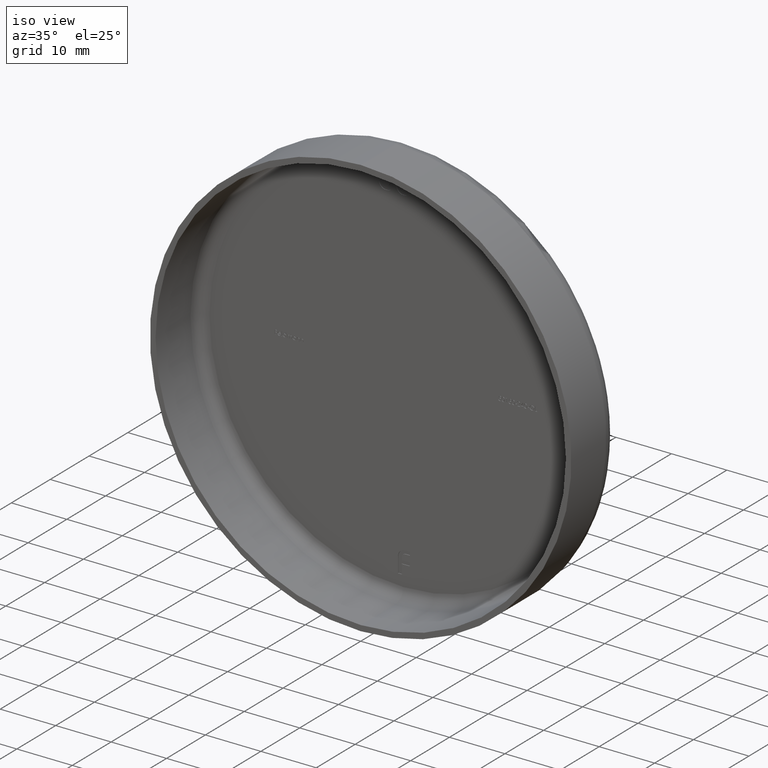
[diagram: clean part render]
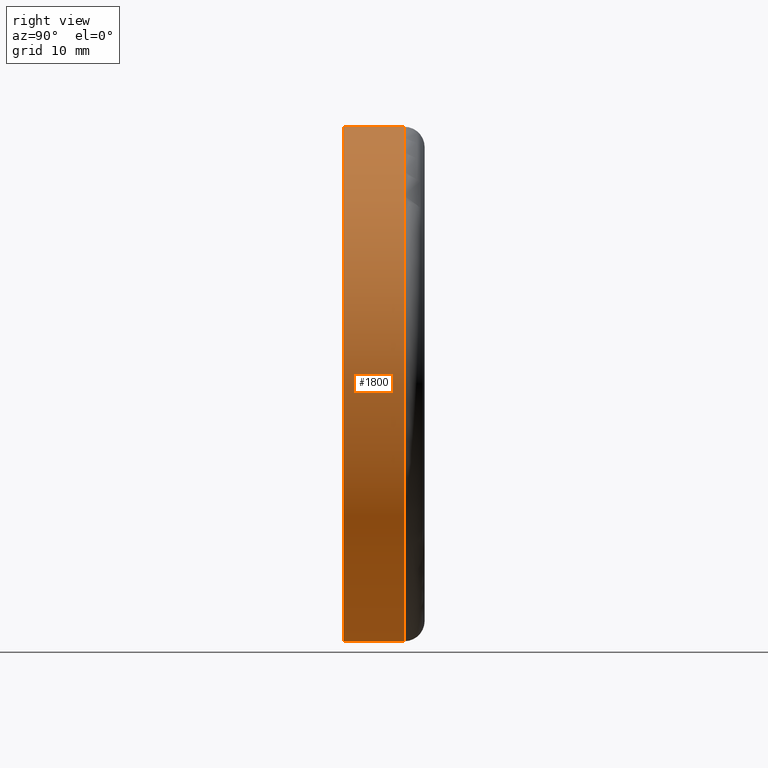
[diagram: tour spotlight — one face highlighted and labeled with its STEP entity id]
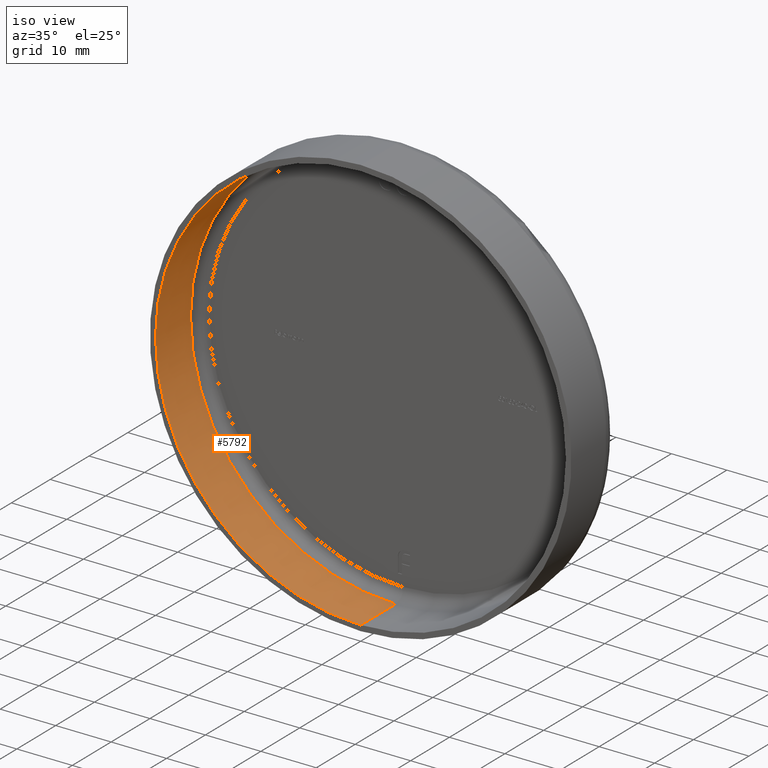
[diagram: tour spotlight — one face highlighted and labeled with its STEP entity id]
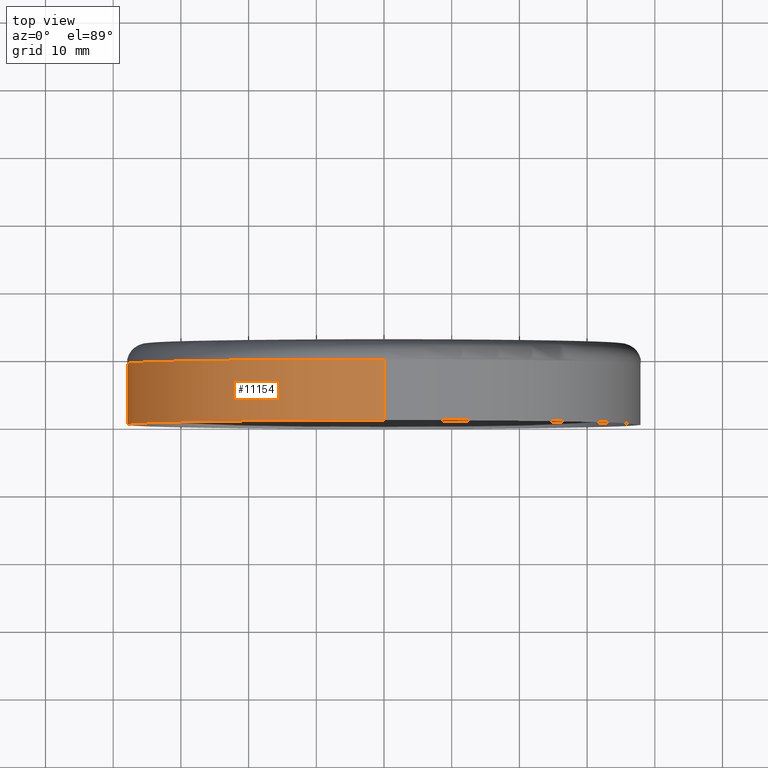
[diagram: tour spotlight — one face highlighted and labeled with its STEP entity id]
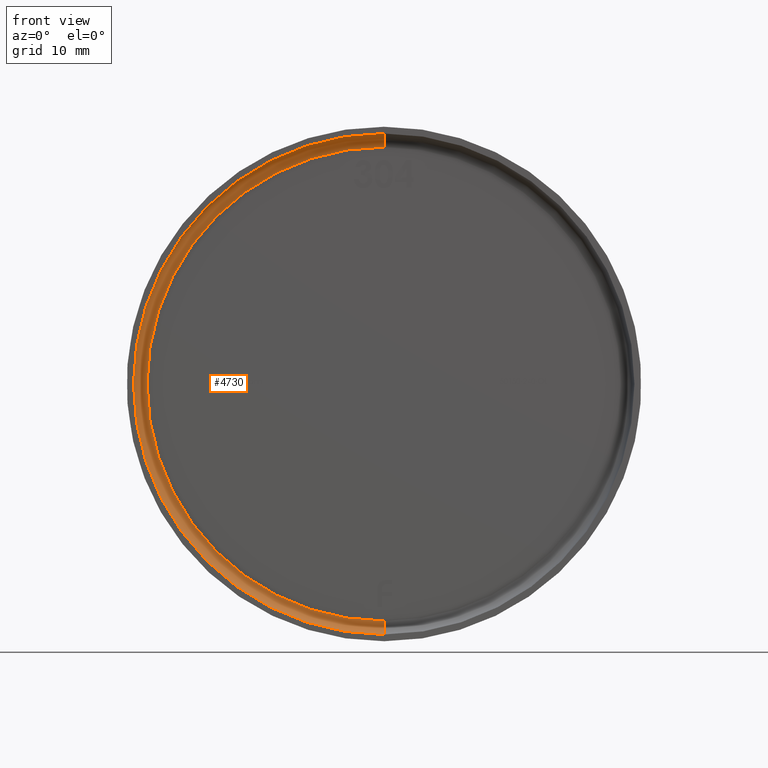
[diagram: tour spotlight — one face highlighted and labeled with its STEP entity id]
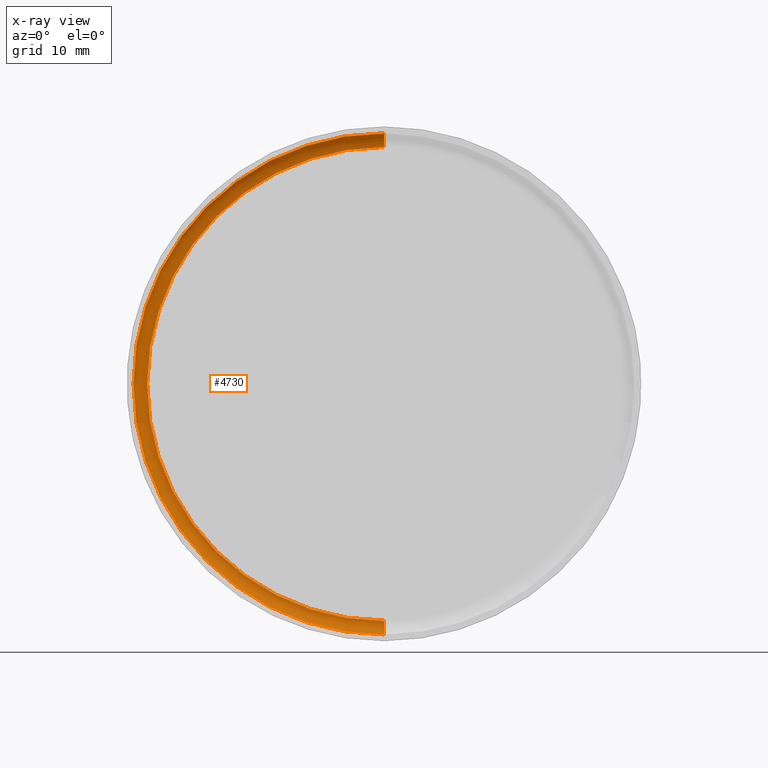
[diagram: x-ray of the same camera — body ghosted, this tour face saturated]
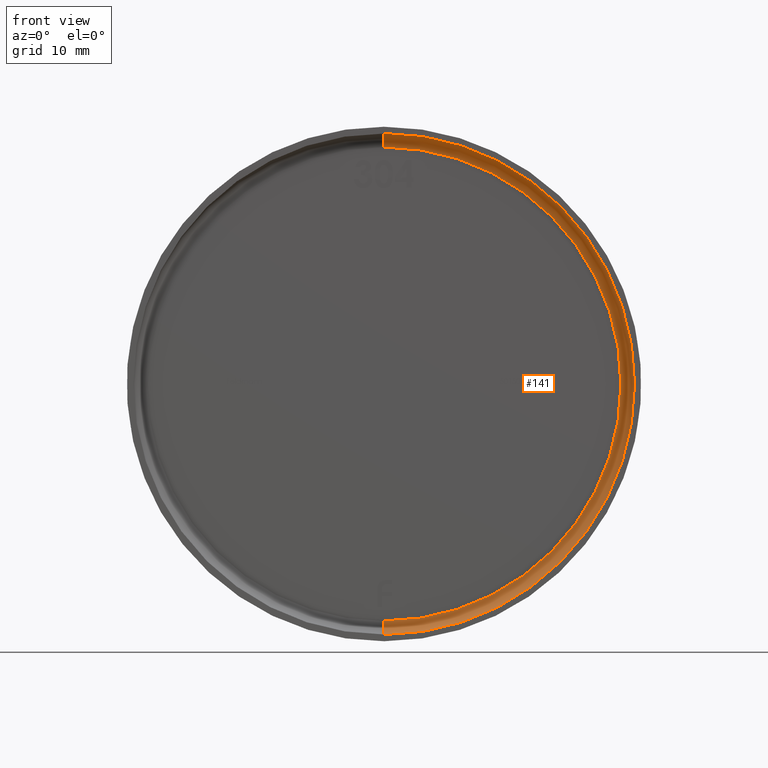
[diagram: tour spotlight — one face highlighted and labeled with its STEP entity id]
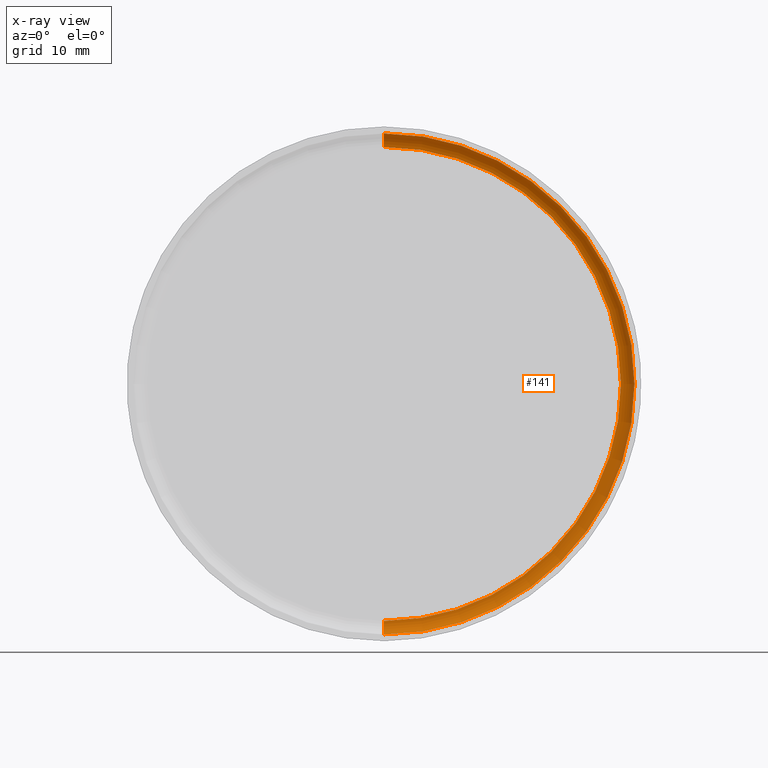
[diagram: x-ray of the same camera — body ghosted, this tour face saturated]
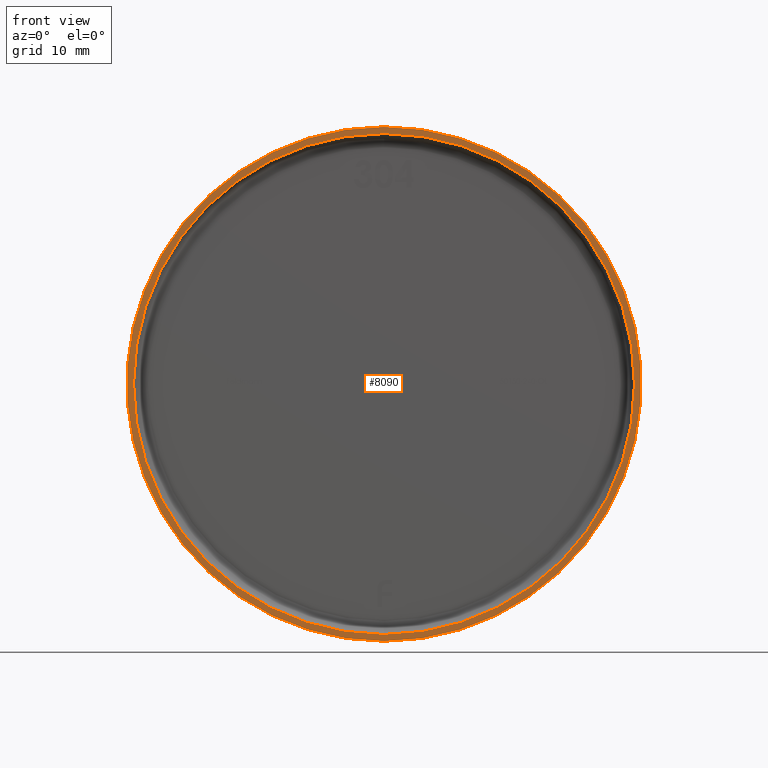
[diagram: tour spotlight — one face highlighted and labeled with its STEP entity id]
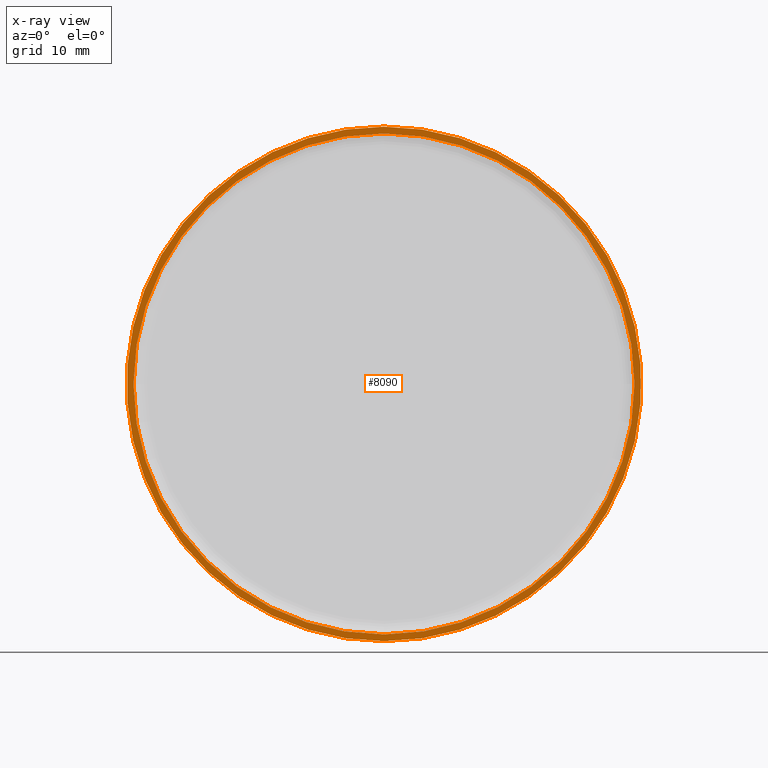
[diagram: x-ray of the same camera — body ghosted, this tour face saturated]
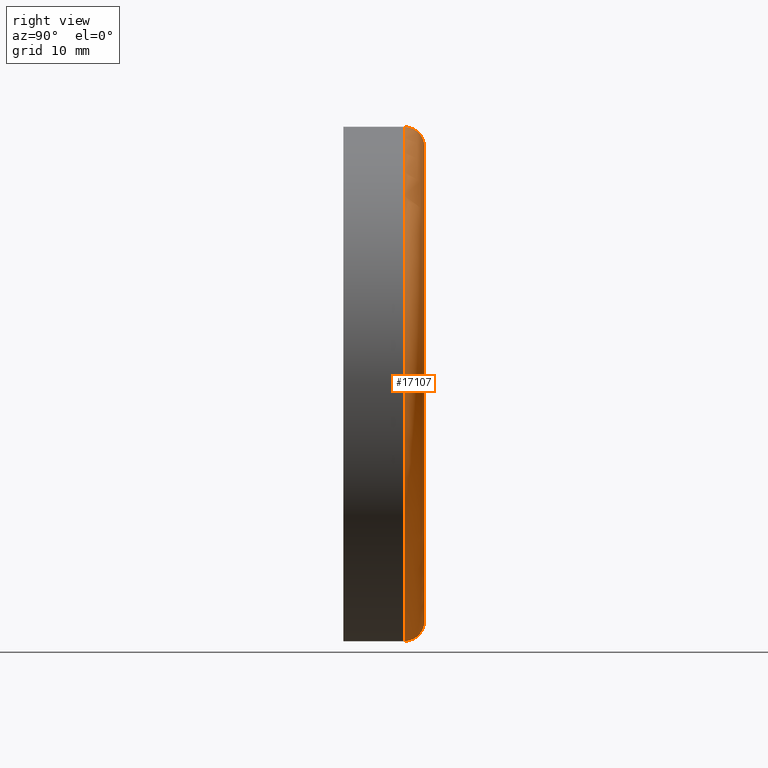
[diagram: tour spotlight — one face highlighted and labeled with its STEP entity id]
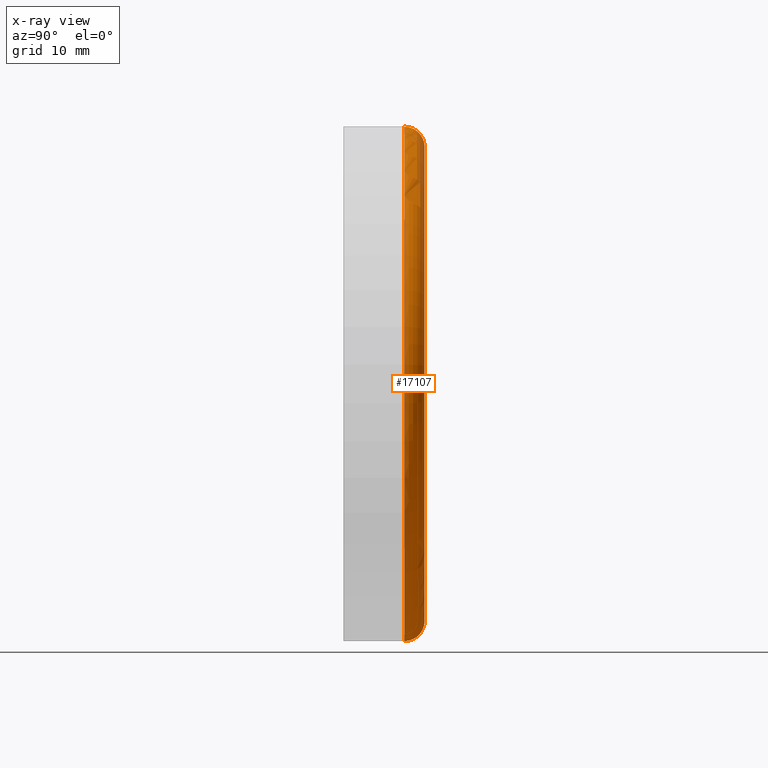
[diagram: x-ray of the same camera — body ghosted, this tour face saturated]
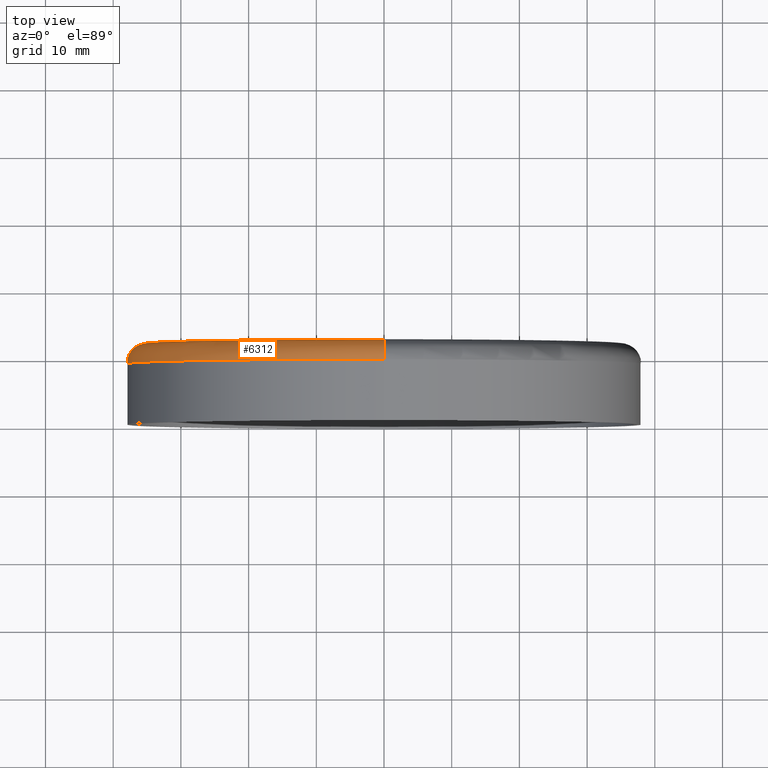
[diagram: tour spotlight — one face highlighted and labeled with its STEP entity id]
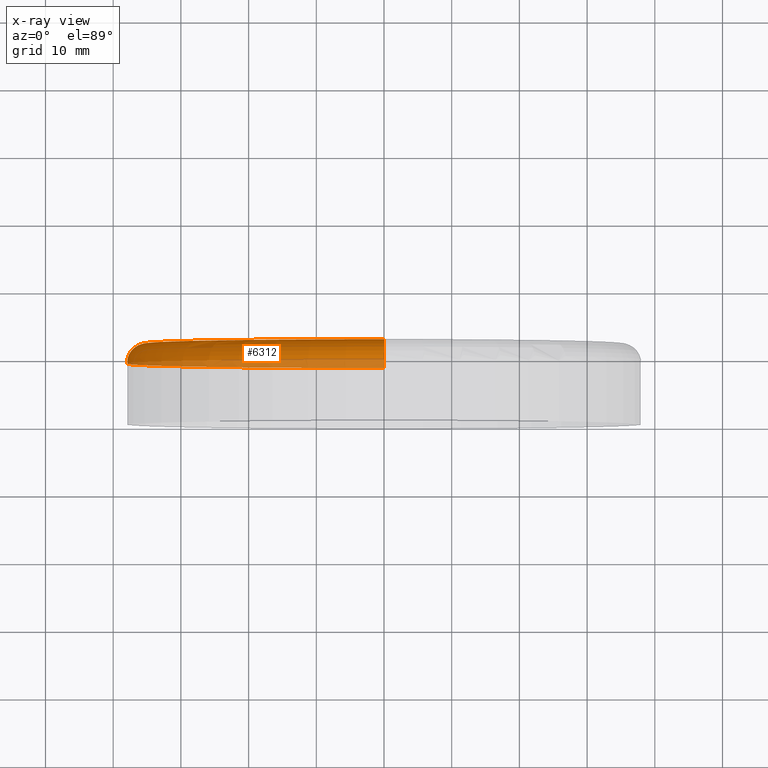
[diagram: x-ray of the same camera — body ghosted, this tour face saturated]
A machine part: a face-by-face anatomy tour. The part has 307 B-rep faces; the first image is the clean iso view, then the 8 largest visible faces are spotlighted one at a time (largest first), each with its STEP entity span.

Face 1 — right view, entity #1800. In plain terms, the highlighted cylindrical surface (partial cylindrical patch) has radius 38 mm, axis along (-0, -1, -0).
Definition (entity closure, byte-faithful):
#56 = CARTESIAN_POINT ( 'NONE',  ( 0.000000000000000000, 0.000000000000000000, -38.00000000000000711 ) ) ;
#803 = CARTESIAN_POINT ( 'NONE',  ( 4.653657836759942730E-15, 0.000000000000000000, 38.00000000000000711 ) ) ;
#1516 = CARTESIAN_POINT ( 'NONE',  ( 0.000000000000000000, 9.000000000000001776, -38.00000000000000711 ) ) ;
#1752 = EDGE_CURVE ( 'NONE', #17239, #14990, #6360, .T. ) ;
#1791 = EDGE_CURVE ( 'NONE', #11901, #3039, #15114, .T. ) ;
#1800 = ADVANCED_FACE ( 'NONE', ( #8040 ), #9499, .T. ) ;
#1884 = CARTESIAN_POINT ( 'NONE',  ( 4.653657836759942730E-15, 9.000000000000001776, 38.00000000000000711 ) ) ;
#2219 = CARTESIAN_POINT ( 'NONE',  ( 0.000000000000000000, 9.000000000000001776, 0.000000000000000000 ) ) ;
#3039 = VERTEX_POINT ( 'NONE', #1884 ) ;
#3606 = DIRECTION ( 'NONE',  ( -0.000000000000000000, -1.000000000000000000, -0.000000000000000000 ) ) ;
#4601 = EDGE_LOOP ( 'NONE', ( #10176, #10042, #6595, #11461 ) ) ;
#4754 = VECTOR ( 'NONE', #12763, 1000.000000000000000 ) ;
#4840 = EDGE_CURVE ( 'NONE', #11901, #17239, #12591, .T. ) ;
#4859 = DIRECTION ( 'NONE',  ( -0.000000000000000000, -1.000000000000000000, -0.000000000000000000 ) ) ;
#6160 = AXIS2_PLACEMENT_3D ( 'NONE', #2219, #3606, #10388 ) ;
#6360 = CIRCLE ( 'NONE', #8860, 38.00000000000000711 ) ;
#6595 = ORIENTED_EDGE ( 'NONE', *, *, #1752, .F. ) ;
#7392 = CARTESIAN_POINT ( 'NONE',  ( 4.653657836759942730E-15, 0.000000000000000000, 38.00000000000000711 ) ) ;
#7586 = CARTESIAN_POINT ( 'NONE',  ( 0.000000000000000000, 0.000000000000000000, 0.000000000000000000 ) ) ;
#7633 = DIRECTION ( 'NONE',  ( 0.000000000000000000, 0.000000000000000000, -1.000000000000000000 ) ) ;
#7698 = DIRECTION ( 'NONE',  ( -0.000000000000000000, -1.000000000000000000, -0.000000000000000000 ) ) ;
#8040 = FACE_OUTER_BOUND ( 'NONE', #4601, .T. ) ;
#8860 = AXIS2_PLACEMENT_3D ( 'NONE', #12887, #7698, #7633 ) ;
#8929 = DIRECTION ( 'NONE',  ( 0.000000000000000000, 0.000000000000000000, -1.000000000000000000 ) ) ;
#9499 = CYLINDRICAL_SURFACE ( 'NONE', #16230, 38.00000000000000711 ) ;
#9871 = EDGE_CURVE ( 'NONE', #3039, #14990, #16252, .T. ) ;
#10042 = ORIENTED_EDGE ( 'NONE', *, *, #9871, .T. ) ;
#10176 = ORIENTED_EDGE ( 'NONE', *, *, #1791, .T. ) ;
#10299 = VECTOR ( 'NONE', #4859, 1000.000000000000000 ) ;
#10388 = DIRECTION ( 'NONE',  ( 0.000000000000000000, 0.000000000000000000, -1.000000000000000000 ) ) ;
#11461 = ORIENTED_EDGE ( 'NONE', *, *, #4840, .F. ) ;
#11901 = VERTEX_POINT ( 'NONE', #1516 ) ;
#12591 = LINE ( 'NONE', #15315, #10299 ) ;
#12763 = DIRECTION ( 'NONE',  ( -0.000000000000000000, -1.000000000000000000, -0.000000000000000000 ) ) ;
#12887 = CARTESIAN_POINT ( 'NONE',  ( 0.000000000000000000, 0.000000000000000000, 0.000000000000000000 ) ) ;
#14990 = VERTEX_POINT ( 'NONE', #803 ) ;
#15114 = CIRCLE ( 'NONE', #6160, 38.00000000000000711 ) ;
#15315 = CARTESIAN_POINT ( 'NONE',  ( 0.000000000000000000, 0.000000000000000000, -38.00000000000000711 ) ) ;
#16230 = AXIS2_PLACEMENT_3D ( 'NONE', #7586, #16901, #8929 ) ;
#16252 = LINE ( 'NONE', #7392, #4754 ) ;
#16901 = DIRECTION ( 'NONE',  ( -0.000000000000000000, -1.000000000000000000, -0.000000000000000000 ) ) ;
#17239 = VERTEX_POINT ( 'NONE', #56 ) ;

Face 2 — iso view, entity #5792. In plain terms, the highlighted cylindrical surface (partial cylindrical patch) has radius 37 mm, axis along (-0, -1, -0).
Definition (entity closure, byte-faithful):
#492 = EDGE_CURVE ( 'NONE', #7180, #16074, #8186, .T. ) ;
#951 = ORIENTED_EDGE ( 'NONE', *, *, #492, .T. ) ;
#1477 = AXIS2_PLACEMENT_3D ( 'NONE', #15703, #9134, #4845 ) ;
#1479 = VERTEX_POINT ( 'NONE', #7387 ) ;
#1711 = DIRECTION ( 'NONE',  ( -0.000000000000000000, -1.000000000000000000, -0.000000000000000000 ) ) ;
#2914 = CARTESIAN_POINT ( 'NONE',  ( 0.000000000000000000, 0.000000000000000000, 0.000000000000000000 ) ) ;
#2991 = EDGE_CURVE ( 'NONE', #3741, #1479, #9483, .T. ) ;
#3393 = EDGE_CURVE ( 'NONE', #3741, #7180, #11572, .T. ) ;
#3741 = VERTEX_POINT ( 'NONE', #4878 ) ;
#4629 = VECTOR ( 'NONE', #4961, 1000.000000000000000 ) ;
#4845 = DIRECTION ( 'NONE',  ( 0.000000000000000000, 0.000000000000000000, -1.000000000000000000 ) ) ;
#4878 = CARTESIAN_POINT ( 'NONE',  ( 4.531193156845207581E-15, 9.000000000000001776, 37.00000000000000711 ) ) ;
#4961 = DIRECTION ( 'NONE',  ( -0.000000000000000000, -1.000000000000000000, -0.000000000000000000 ) ) ;
#5792 = ADVANCED_FACE ( 'NONE', ( #11541 ), #5877, .F. ) ;
#5877 = CYLINDRICAL_SURFACE ( 'NONE', #14779, 37.00000000000000711 ) ;
#6016 = ORIENTED_EDGE ( 'NONE', *, *, #2991, .F. ) ;
#6066 = EDGE_LOOP ( 'NONE', ( #6016, #12122, #951, #11730 ) ) ;
#6197 = CARTESIAN_POINT ( 'NONE',  ( 0.000000000000000000, 0.000000000000000000, -37.00000000000000711 ) ) ;
#7180 = VERTEX_POINT ( 'NONE', #12826 ) ;
#7387 = CARTESIAN_POINT ( 'NONE',  ( 0.000000000000000000, 9.000000000000001776, -37.00000000000000711 ) ) ;
#7968 = AXIS2_PLACEMENT_3D ( 'NONE', #14968, #1711, #12432 ) ;
#8186 = CIRCLE ( 'NONE', #1477, 37.00000000000000711 ) ;
#9134 = DIRECTION ( 'NONE',  ( -0.000000000000000000, -1.000000000000000000, -0.000000000000000000 ) ) ;
#9483 = CIRCLE ( 'NONE', #7968, 37.00000000000000711 ) ;
#9569 = DIRECTION ( 'NONE',  ( 0.000000000000000000, 0.000000000000000000, -1.000000000000000000 ) ) ;
#11541 = FACE_OUTER_BOUND ( 'NONE', #6066, .T. ) ;
#11572 = LINE ( 'NONE', #16140, #16351 ) ;
#11730 = ORIENTED_EDGE ( 'NONE', *, *, #15002, .F. ) ;
#12122 = ORIENTED_EDGE ( 'NONE', *, *, #3393, .T. ) ;
#12432 = DIRECTION ( 'NONE',  ( 0.000000000000000000, 0.000000000000000000, -1.000000000000000000 ) ) ;
#12826 = CARTESIAN_POINT ( 'NONE',  ( 4.531193156845207581E-15, -1.224646799147353207E-16, 37.00000000000000711 ) ) ;
#13351 = DIRECTION ( 'NONE',  ( -0.000000000000000000, -1.000000000000000000, -0.000000000000000000 ) ) ;
#13423 = LINE ( 'NONE', #6197, #4629 ) ;
#14779 = AXIS2_PLACEMENT_3D ( 'NONE', #2914, #16321, #9569 ) ;
#14968 = CARTESIAN_POINT ( 'NONE',  ( 0.000000000000000000, 9.000000000000001776, 0.000000000000000000 ) ) ;
#15002 = EDGE_CURVE ( 'NONE', #1479, #16074, #13423, .T. ) ;
#15703 = CARTESIAN_POINT ( 'NONE',  ( 0.000000000000000000, -1.224646799147353207E-16, 0.000000000000000000 ) ) ;
#16074 = VERTEX_POINT ( 'NONE', #16897 ) ;
#16140 = CARTESIAN_POINT ( 'NONE',  ( 4.531193156845207581E-15, 0.000000000000000000, 37.00000000000000711 ) ) ;
#16321 = DIRECTION ( 'NONE',  ( -0.000000000000000000, -1.000000000000000000, -0.000000000000000000 ) ) ;
#16351 = VECTOR ( 'NONE', #13351, 1000.000000000000000 ) ;
#16897 = CARTESIAN_POINT ( 'NONE',  ( 0.000000000000000000, -1.224646799147353207E-16, -37.00000000000000711 ) ) ;

Face 3 — top view, entity #11154. In plain terms, the highlighted cylindrical surface (partial cylindrical patch) has radius 38 mm, axis along (-0, -1, -0).
Definition (entity closure, byte-faithful):
#56 = CARTESIAN_POINT ( 'NONE',  ( 0.000000000000000000, 0.000000000000000000, -38.00000000000000711 ) ) ;
#108 = DIRECTION ( 'NONE',  ( -0.000000000000000000, -1.000000000000000000, -0.000000000000000000 ) ) ;
#803 = CARTESIAN_POINT ( 'NONE',  ( 4.653657836759942730E-15, 0.000000000000000000, 38.00000000000000711 ) ) ;
#859 = ORIENTED_EDGE ( 'NONE', *, *, #4840, .T. ) ;
#1191 = AXIS2_PLACEMENT_3D ( 'NONE', #7684, #17126, #17001 ) ;
#1371 = EDGE_LOOP ( 'NONE', ( #15139, #5094, #859, #4338 ) ) ;
#1516 = CARTESIAN_POINT ( 'NONE',  ( 0.000000000000000000, 9.000000000000001776, -38.00000000000000711 ) ) ;
#1827 = EDGE_CURVE ( 'NONE', #14990, #17239, #7827, .T. ) ;
#1884 = CARTESIAN_POINT ( 'NONE',  ( 4.653657836759942730E-15, 9.000000000000001776, 38.00000000000000711 ) ) ;
#2465 = CYLINDRICAL_SURFACE ( 'NONE', #1191, 38.00000000000000711 ) ;
#3039 = VERTEX_POINT ( 'NONE', #1884 ) ;
#4338 = ORIENTED_EDGE ( 'NONE', *, *, #1827, .F. ) ;
#4754 = VECTOR ( 'NONE', #12763, 1000.000000000000000 ) ;
#4840 = EDGE_CURVE ( 'NONE', #11901, #17239, #12591, .T. ) ;
#4859 = DIRECTION ( 'NONE',  ( -0.000000000000000000, -1.000000000000000000, -0.000000000000000000 ) ) ;
#4997 = CARTESIAN_POINT ( 'NONE',  ( 0.000000000000000000, 0.000000000000000000, 0.000000000000000000 ) ) ;
#5094 = ORIENTED_EDGE ( 'NONE', *, *, #17205, .T. ) ;
#6837 = FACE_OUTER_BOUND ( 'NONE', #1371, .T. ) ;
#7392 = CARTESIAN_POINT ( 'NONE',  ( 4.653657836759942730E-15, 0.000000000000000000, 38.00000000000000711 ) ) ;
#7684 = CARTESIAN_POINT ( 'NONE',  ( 0.000000000000000000, 0.000000000000000000, 0.000000000000000000 ) ) ;
#7827 = CIRCLE ( 'NONE', #14432, 38.00000000000000711 ) ;
#9387 = DIRECTION ( 'NONE',  ( -0.000000000000000000, -1.000000000000000000, -0.000000000000000000 ) ) ;
#9871 = EDGE_CURVE ( 'NONE', #3039, #14990, #16252, .T. ) ;
#10299 = VECTOR ( 'NONE', #4859, 1000.000000000000000 ) ;
#10829 = CARTESIAN_POINT ( 'NONE',  ( 0.000000000000000000, 9.000000000000001776, 0.000000000000000000 ) ) ;
#11154 = ADVANCED_FACE ( 'NONE', ( #6837 ), #2465, .T. ) ;
#11901 = VERTEX_POINT ( 'NONE', #1516 ) ;
#11956 = DIRECTION ( 'NONE',  ( 0.000000000000000000, 0.000000000000000000, -1.000000000000000000 ) ) ;
#12114 = DIRECTION ( 'NONE',  ( 0.000000000000000000, 0.000000000000000000, -1.000000000000000000 ) ) ;
#12591 = LINE ( 'NONE', #15315, #10299 ) ;
#12763 = DIRECTION ( 'NONE',  ( -0.000000000000000000, -1.000000000000000000, -0.000000000000000000 ) ) ;
#12886 = AXIS2_PLACEMENT_3D ( 'NONE', #10829, #108, #12114 ) ;
#14432 = AXIS2_PLACEMENT_3D ( 'NONE', #4997, #9387, #11956 ) ;
#14990 = VERTEX_POINT ( 'NONE', #803 ) ;
#15139 = ORIENTED_EDGE ( 'NONE', *, *, #9871, .F. ) ;
#15315 = CARTESIAN_POINT ( 'NONE',  ( 0.000000000000000000, 0.000000000000000000, -38.00000000000000711 ) ) ;
#16252 = LINE ( 'NONE', #7392, #4754 ) ;
#16416 = CIRCLE ( 'NONE', #12886, 38.00000000000000711 ) ;
#17001 = DIRECTION ( 'NONE',  ( 0.000000000000000000, 0.000000000000000000, -1.000000000000000000 ) ) ;
#17126 = DIRECTION ( 'NONE',  ( -0.000000000000000000, -1.000000000000000000, -0.000000000000000000 ) ) ;
#17205 = EDGE_CURVE ( 'NONE', #3039, #11901, #16416, .T. ) ;
#17239 = VERTEX_POINT ( 'NONE', #56 ) ;

Face 4 — front view, entity #4730. An x-ray twin of the same camera follows (body ghosted, this face saturated) — the face is partly hidden behind the body. In plain terms, the highlighted toroidal blend (fillet) surface has major radius 35 mm and minor (blend) radius 2 mm.
Definition (entity closure, byte-faithful):
#196 = CARTESIAN_POINT ( 'NONE',  ( 0.000000000000000000, 9.000000000000001776, 0.000000000000000000 ) ) ;
#727 = CARTESIAN_POINT ( 'NONE',  ( 0.000000000000000000, 9.000000000000001776, -35.00000000000000000 ) ) ;
#1390 = EDGE_CURVE ( 'NONE', #7884, #3741, #6573, .T. ) ;
#1479 = VERTEX_POINT ( 'NONE', #7387 ) ;
#1711 = DIRECTION ( 'NONE',  ( -0.000000000000000000, -1.000000000000000000, -0.000000000000000000 ) ) ;
#1846 = AXIS2_PLACEMENT_3D ( 'NONE', #196, #13854, #4587 ) ;
#1853 = CIRCLE ( 'NONE', #10138, 35.00000000000000000 ) ;
#2025 = CARTESIAN_POINT ( 'NONE',  ( 4.286263797015736496E-15, 9.000000000000001776, 35.00000000000000000 ) ) ;
#2200 = DIRECTION ( 'NONE',  ( -1.224646799147353454E-16, 0.000000000000000000, -1.000000000000000000 ) ) ;
#2491 = DIRECTION ( 'NONE',  ( -0.000000000000000000, -1.000000000000000000, -0.000000000000000000 ) ) ;
#2991 = EDGE_CURVE ( 'NONE', #3741, #1479, #9483, .T. ) ;
#3603 = FACE_OUTER_BOUND ( 'NONE', #8465, .T. ) ;
#3741 = VERTEX_POINT ( 'NONE', #4878 ) ;
#4587 = DIRECTION ( 'NONE',  ( 0.000000000000000000, 0.000000000000000000, -1.000000000000000000 ) ) ;
#4730 = ADVANCED_FACE ( 'NONE', ( #3603 ), #13831, .F. ) ;
#4765 = DIRECTION ( 'NONE',  ( -1.000000000000000000, 0.000000000000000000, 0.000000000000000000 ) ) ;
#4878 = CARTESIAN_POINT ( 'NONE',  ( 4.531193156845207581E-15, 9.000000000000001776, 37.00000000000000711 ) ) ;
#5307 = CARTESIAN_POINT ( 'NONE',  ( 0.000000000000000000, 11.00000000000000178, 0.000000000000000000 ) ) ;
#6146 = DIRECTION ( 'NONE',  ( 1.000000000000000000, 0.000000000000000000, -1.224646799147353207E-16 ) ) ;
#6573 = CIRCLE ( 'NONE', #6735, 2.000000000000001776 ) ;
#6735 = AXIS2_PLACEMENT_3D ( 'NONE', #2025, #6146, #2200 ) ;
#6879 = ORIENTED_EDGE ( 'NONE', *, *, #12253, .F. ) ;
#7387 = CARTESIAN_POINT ( 'NONE',  ( 0.000000000000000000, 9.000000000000001776, -37.00000000000000711 ) ) ;
#7884 = VERTEX_POINT ( 'NONE', #11456 ) ;
#7968 = AXIS2_PLACEMENT_3D ( 'NONE', #14968, #1711, #12432 ) ;
#8465 = EDGE_LOOP ( 'NONE', ( #6879, #16279, #12275, #10005 ) ) ;
#9046 = AXIS2_PLACEMENT_3D ( 'NONE', #727, #4765, #12665 ) ;
#9483 = CIRCLE ( 'NONE', #7968, 37.00000000000000711 ) ;
#10005 = ORIENTED_EDGE ( 'NONE', *, *, #15343, .F. ) ;
#10138 = AXIS2_PLACEMENT_3D ( 'NONE', #5307, #2491, #10534 ) ;
#10534 = DIRECTION ( 'NONE',  ( 0.000000000000000000, 0.000000000000000000, -1.000000000000000000 ) ) ;
#11456 = CARTESIAN_POINT ( 'NONE',  ( 4.408728476930472433E-15, 11.00000000000000178, 35.00000000000000000 ) ) ;
#11890 = VERTEX_POINT ( 'NONE', #12246 ) ;
#12246 = CARTESIAN_POINT ( 'NONE',  ( 0.000000000000000000, 11.00000000000000178, -35.00000000000000000 ) ) ;
#12253 = EDGE_CURVE ( 'NONE', #7884, #11890, #1853, .T. ) ;
#12275 = ORIENTED_EDGE ( 'NONE', *, *, #2991, .T. ) ;
#12432 = DIRECTION ( 'NONE',  ( 0.000000000000000000, 0.000000000000000000, -1.000000000000000000 ) ) ;
#12665 = DIRECTION ( 'NONE',  ( 0.000000000000000000, 0.000000000000000000, 1.000000000000000000 ) ) ;
#13831 = TOROIDAL_SURFACE ( 'NONE', #1846, 35.00000000000000000, 2.000000000000000000 ) ;
#13854 = DIRECTION ( 'NONE',  ( -0.000000000000000000, -1.000000000000000000, -0.000000000000000000 ) ) ;
#14968 = CARTESIAN_POINT ( 'NONE',  ( 0.000000000000000000, 9.000000000000001776, 0.000000000000000000 ) ) ;
#15343 = EDGE_CURVE ( 'NONE', #11890, #1479, #17072, .T. ) ;
#16279 = ORIENTED_EDGE ( 'NONE', *, *, #1390, .T. ) ;
#17072 = CIRCLE ( 'NONE', #9046, 2.000000000000001776 ) ;

Face 5 — front view, entity #141. An x-ray twin of the same camera follows (body ghosted, this face saturated) — the face is partly hidden behind the body. In plain terms, the highlighted toroidal blend (fillet) surface has major radius 35 mm and minor (blend) radius 2 mm.
Definition (entity closure, byte-faithful):
#141 = ADVANCED_FACE ( 'NONE', ( #11525 ), #16313, .F. ) ;
#727 = CARTESIAN_POINT ( 'NONE',  ( 0.000000000000000000, 9.000000000000001776, -35.00000000000000000 ) ) ;
#844 = DIRECTION ( 'NONE',  ( 0.000000000000000000, 0.000000000000000000, -1.000000000000000000 ) ) ;
#1390 = EDGE_CURVE ( 'NONE', #7884, #3741, #6573, .T. ) ;
#1479 = VERTEX_POINT ( 'NONE', #7387 ) ;
#2025 = CARTESIAN_POINT ( 'NONE',  ( 4.286263797015736496E-15, 9.000000000000001776, 35.00000000000000000 ) ) ;
#2200 = DIRECTION ( 'NONE',  ( -1.224646799147353454E-16, 0.000000000000000000, -1.000000000000000000 ) ) ;
#2630 = EDGE_LOOP ( 'NONE', ( #12549, #7027, #10561, #2662 ) ) ;
#2662 = ORIENTED_EDGE ( 'NONE', *, *, #9579, .T. ) ;
#3556 = DIRECTION ( 'NONE',  ( 0.000000000000000000, 0.000000000000000000, -1.000000000000000000 ) ) ;
#3741 = VERTEX_POINT ( 'NONE', #4878 ) ;
#4686 = AXIS2_PLACEMENT_3D ( 'NONE', #6745, #10772, #10716 ) ;
#4765 = DIRECTION ( 'NONE',  ( -1.000000000000000000, 0.000000000000000000, 0.000000000000000000 ) ) ;
#4878 = CARTESIAN_POINT ( 'NONE',  ( 4.531193156845207581E-15, 9.000000000000001776, 37.00000000000000711 ) ) ;
#5795 = CIRCLE ( 'NONE', #6000, 35.00000000000000000 ) ;
#6000 = AXIS2_PLACEMENT_3D ( 'NONE', #9939, #10110, #844 ) ;
#6146 = DIRECTION ( 'NONE',  ( 1.000000000000000000, 0.000000000000000000, -1.224646799147353207E-16 ) ) ;
#6573 = CIRCLE ( 'NONE', #6735, 2.000000000000001776 ) ;
#6735 = AXIS2_PLACEMENT_3D ( 'NONE', #2025, #6146, #2200 ) ;
#6745 = CARTESIAN_POINT ( 'NONE',  ( 0.000000000000000000, 9.000000000000001776, 0.000000000000000000 ) ) ;
#7027 = ORIENTED_EDGE ( 'NONE', *, *, #15401, .F. ) ;
#7387 = CARTESIAN_POINT ( 'NONE',  ( 0.000000000000000000, 9.000000000000001776, -37.00000000000000711 ) ) ;
#7701 = DIRECTION ( 'NONE',  ( -0.000000000000000000, -1.000000000000000000, -0.000000000000000000 ) ) ;
#7884 = VERTEX_POINT ( 'NONE', #11456 ) ;
#8115 = AXIS2_PLACEMENT_3D ( 'NONE', #15676, #7701, #3556 ) ;
#9046 = AXIS2_PLACEMENT_3D ( 'NONE', #727, #4765, #12665 ) ;
#9579 = EDGE_CURVE ( 'NONE', #1479, #3741, #14985, .T. ) ;
#9939 = CARTESIAN_POINT ( 'NONE',  ( 0.000000000000000000, 11.00000000000000178, 0.000000000000000000 ) ) ;
#10110 = DIRECTION ( 'NONE',  ( -0.000000000000000000, -1.000000000000000000, -0.000000000000000000 ) ) ;
#10561 = ORIENTED_EDGE ( 'NONE', *, *, #15343, .T. ) ;
#10716 = DIRECTION ( 'NONE',  ( 0.000000000000000000, 0.000000000000000000, -1.000000000000000000 ) ) ;
#10772 = DIRECTION ( 'NONE',  ( -0.000000000000000000, -1.000000000000000000, -0.000000000000000000 ) ) ;
#11456 = CARTESIAN_POINT ( 'NONE',  ( 4.408728476930472433E-15, 11.00000000000000178, 35.00000000000000000 ) ) ;
#11525 = FACE_OUTER_BOUND ( 'NONE', #2630, .T. ) ;
#11890 = VERTEX_POINT ( 'NONE', #12246 ) ;
#12246 = CARTESIAN_POINT ( 'NONE',  ( 0.000000000000000000, 11.00000000000000178, -35.00000000000000000 ) ) ;
#12549 = ORIENTED_EDGE ( 'NONE', *, *, #1390, .F. ) ;
#12665 = DIRECTION ( 'NONE',  ( 0.000000000000000000, 0.000000000000000000, 1.000000000000000000 ) ) ;
#14985 = CIRCLE ( 'NONE', #8115, 37.00000000000000711 ) ;
#15343 = EDGE_CURVE ( 'NONE', #11890, #1479, #17072, .T. ) ;
#15401 = EDGE_CURVE ( 'NONE', #11890, #7884, #5795, .T. ) ;
#15676 = CARTESIAN_POINT ( 'NONE',  ( 0.000000000000000000, 9.000000000000001776, 0.000000000000000000 ) ) ;
#16313 = TOROIDAL_SURFACE ( 'NONE', #4686, 35.00000000000000000, 2.000000000000000000 ) ;
#17072 = CIRCLE ( 'NONE', #9046, 2.000000000000001776 ) ;

Face 6 — front view, entity #8090. An x-ray twin of the same camera follows (body ghosted, this face saturated) — the face is partly hidden behind the body. In plain terms, the highlighted planar face has unit normal (0, -1, -0).
Definition (entity closure, byte-faithful):
#56 = CARTESIAN_POINT ( 'NONE',  ( 0.000000000000000000, 0.000000000000000000, -38.00000000000000711 ) ) ;
#76 = PLANE ( 'NONE',  #4619 ) ;
#492 = EDGE_CURVE ( 'NONE', #7180, #16074, #8186, .T. ) ;
#803 = CARTESIAN_POINT ( 'NONE',  ( 4.653657836759942730E-15, 0.000000000000000000, 38.00000000000000711 ) ) ;
#1477 = AXIS2_PLACEMENT_3D ( 'NONE', #15703, #9134, #4845 ) ;
#1619 = EDGE_LOOP ( 'NONE', ( #7503, #2507 ) ) ;
#1752 = EDGE_CURVE ( 'NONE', #17239, #14990, #6360, .T. ) ;
#1827 = EDGE_CURVE ( 'NONE', #14990, #17239, #7827, .T. ) ;
#1907 = FACE_BOUND ( 'NONE', #1619, .T. ) ;
#2507 = ORIENTED_EDGE ( 'NONE', *, *, #492, .F. ) ;
#4619 = AXIS2_PLACEMENT_3D ( 'NONE', #14562, #16144, #5239 ) ;
#4845 = DIRECTION ( 'NONE',  ( 0.000000000000000000, 0.000000000000000000, -1.000000000000000000 ) ) ;
#4997 = CARTESIAN_POINT ( 'NONE',  ( 0.000000000000000000, 0.000000000000000000, 0.000000000000000000 ) ) ;
#5239 = DIRECTION ( 'NONE',  ( 0.000000000000000000, 0.000000000000000000, -1.000000000000000000 ) ) ;
#5408 = FACE_OUTER_BOUND ( 'NONE', #11172, .T. ) ;
#6360 = CIRCLE ( 'NONE', #8860, 38.00000000000000711 ) ;
#7180 = VERTEX_POINT ( 'NONE', #12826 ) ;
#7503 = ORIENTED_EDGE ( 'NONE', *, *, #14243, .F. ) ;
#7633 = DIRECTION ( 'NONE',  ( 0.000000000000000000, 0.000000000000000000, -1.000000000000000000 ) ) ;
#7698 = DIRECTION ( 'NONE',  ( -0.000000000000000000, -1.000000000000000000, -0.000000000000000000 ) ) ;
#7827 = CIRCLE ( 'NONE', #14432, 38.00000000000000711 ) ;
#8090 = ADVANCED_FACE ( 'NONE', ( #5408, #1907 ), #76, .T. ) ;
#8186 = CIRCLE ( 'NONE', #1477, 37.00000000000000711 ) ;
#8860 = AXIS2_PLACEMENT_3D ( 'NONE', #12887, #7698, #7633 ) ;
#9134 = DIRECTION ( 'NONE',  ( -0.000000000000000000, -1.000000000000000000, -0.000000000000000000 ) ) ;
#9145 = AXIS2_PLACEMENT_3D ( 'NONE', #15729, #10392, #14326 ) ;
#9387 = DIRECTION ( 'NONE',  ( -0.000000000000000000, -1.000000000000000000, -0.000000000000000000 ) ) ;
#10392 = DIRECTION ( 'NONE',  ( -0.000000000000000000, -1.000000000000000000, -0.000000000000000000 ) ) ;
#11172 = EDGE_LOOP ( 'NONE', ( #13850, #12108 ) ) ;
#11956 = DIRECTION ( 'NONE',  ( 0.000000000000000000, 0.000000000000000000, -1.000000000000000000 ) ) ;
#12108 = ORIENTED_EDGE ( 'NONE', *, *, #1827, .T. ) ;
#12826 = CARTESIAN_POINT ( 'NONE',  ( 4.531193156845207581E-15, -1.224646799147353207E-16, 37.00000000000000711 ) ) ;
#12887 = CARTESIAN_POINT ( 'NONE',  ( 0.000000000000000000, 0.000000000000000000, 0.000000000000000000 ) ) ;
#13850 = ORIENTED_EDGE ( 'NONE', *, *, #1752, .T. ) ;
#14243 = EDGE_CURVE ( 'NONE', #16074, #7180, #16407, .T. ) ;
#14326 = DIRECTION ( 'NONE',  ( 0.000000000000000000, 0.000000000000000000, -1.000000000000000000 ) ) ;
#14432 = AXIS2_PLACEMENT_3D ( 'NONE', #4997, #9387, #11956 ) ;
#14562 = CARTESIAN_POINT ( 'NONE',  ( 37.00000000000000711, -6.123233995736766036E-17, 0.000000000000000000 ) ) ;
#14990 = VERTEX_POINT ( 'NONE', #803 ) ;
#15703 = CARTESIAN_POINT ( 'NONE',  ( 0.000000000000000000, -1.224646799147353207E-16, 0.000000000000000000 ) ) ;
#15729 = CARTESIAN_POINT ( 'NONE',  ( 0.000000000000000000, -1.224646799147353207E-16, 0.000000000000000000 ) ) ;
#16074 = VERTEX_POINT ( 'NONE', #16897 ) ;
#16144 = DIRECTION ( 'NONE',  ( 0.000000000000000000, -1.000000000000000000, -0.000000000000000000 ) ) ;
#16407 = CIRCLE ( 'NONE', #9145, 37.00000000000000711 ) ;
#16897 = CARTESIAN_POINT ( 'NONE',  ( 0.000000000000000000, -1.224646799147353207E-16, -37.00000000000000711 ) ) ;
#17239 = VERTEX_POINT ( 'NONE', #56 ) ;

Face 7 — right view, entity #17107. An x-ray twin of the same camera follows (body ghosted, this face saturated) — the face is partly hidden behind the body. In plain terms, the highlighted toroidal blend (fillet) surface has major radius 35 mm and minor (blend) radius 3 mm.
Definition (entity closure, byte-faithful):
#542 = EDGE_CURVE ( 'NONE', #790, #11901, #11105, .T. ) ;
#790 = VERTEX_POINT ( 'NONE', #9815 ) ;
#794 = FACE_OUTER_BOUND ( 'NONE', #2540, .T. ) ;
#815 = CIRCLE ( 'NONE', #3849, 3.000000000000002665 ) ;
#1516 = CARTESIAN_POINT ( 'NONE',  ( 0.000000000000000000, 9.000000000000001776, -38.00000000000000711 ) ) ;
#1791 = EDGE_CURVE ( 'NONE', #11901, #3039, #15114, .T. ) ;
#1884 = CARTESIAN_POINT ( 'NONE',  ( 4.653657836759942730E-15, 9.000000000000001776, 38.00000000000000711 ) ) ;
#2051 = DIRECTION ( 'NONE',  ( -0.000000000000000000, -1.000000000000000000, -0.000000000000000000 ) ) ;
#2219 = CARTESIAN_POINT ( 'NONE',  ( 0.000000000000000000, 9.000000000000001776, 0.000000000000000000 ) ) ;
#2540 = EDGE_LOOP ( 'NONE', ( #13904, #16478, #4541, #11237 ) ) ;
#3039 = VERTEX_POINT ( 'NONE', #1884 ) ;
#3591 = AXIS2_PLACEMENT_3D ( 'NONE', #13091, #12855, #3688 ) ;
#3606 = DIRECTION ( 'NONE',  ( -0.000000000000000000, -1.000000000000000000, -0.000000000000000000 ) ) ;
#3688 = DIRECTION ( 'NONE',  ( 0.000000000000000000, 0.000000000000000000, 1.000000000000000000 ) ) ;
#3849 = AXIS2_PLACEMENT_3D ( 'NONE', #13452, #10956, #6939 ) ;
#4541 = ORIENTED_EDGE ( 'NONE', *, *, #1791, .F. ) ;
#6019 = CIRCLE ( 'NONE', #11468, 35.00000000000000000 ) ;
#6160 = AXIS2_PLACEMENT_3D ( 'NONE', #2219, #3606, #10388 ) ;
#6939 = DIRECTION ( 'NONE',  ( -1.224646799147351975E-16, 0.000000000000000000, -1.000000000000000000 ) ) ;
#7036 = TOROIDAL_SURFACE ( 'NONE', #11731, 35.00000000000000000, 3.000000000000000888 ) ;
#8782 = CARTESIAN_POINT ( 'NONE',  ( 4.469960816887840007E-15, 12.00000000000000000, 35.00000000000000000 ) ) ;
#9406 = EDGE_CURVE ( 'NONE', #790, #10241, #6019, .T. ) ;
#9815 = CARTESIAN_POINT ( 'NONE',  ( 0.000000000000000000, 12.00000000000000000, -35.00000000000000000 ) ) ;
#9931 = CARTESIAN_POINT ( 'NONE',  ( 0.000000000000000000, 12.00000000000000000, 0.000000000000000000 ) ) ;
#10241 = VERTEX_POINT ( 'NONE', #8782 ) ;
#10321 = DIRECTION ( 'NONE',  ( 0.000000000000000000, 0.000000000000000000, -1.000000000000000000 ) ) ;
#10388 = DIRECTION ( 'NONE',  ( 0.000000000000000000, 0.000000000000000000, -1.000000000000000000 ) ) ;
#10723 = EDGE_CURVE ( 'NONE', #10241, #3039, #815, .T. ) ;
#10956 = DIRECTION ( 'NONE',  ( 1.000000000000000000, 0.000000000000000000, -1.224646799147353207E-16 ) ) ;
#11105 = CIRCLE ( 'NONE', #3591, 3.000000000000002665 ) ;
#11237 = ORIENTED_EDGE ( 'NONE', *, *, #542, .F. ) ;
#11468 = AXIS2_PLACEMENT_3D ( 'NONE', #9931, #2051, #15272 ) ;
#11731 = AXIS2_PLACEMENT_3D ( 'NONE', #14202, #15366, #10321 ) ;
#11901 = VERTEX_POINT ( 'NONE', #1516 ) ;
#12855 = DIRECTION ( 'NONE',  ( -1.000000000000000000, 0.000000000000000000, 0.000000000000000000 ) ) ;
#13091 = CARTESIAN_POINT ( 'NONE',  ( 0.000000000000000000, 9.000000000000001776, -35.00000000000000000 ) ) ;
#13452 = CARTESIAN_POINT ( 'NONE',  ( 4.286263797015736496E-15, 9.000000000000001776, 35.00000000000000000 ) ) ;
#13904 = ORIENTED_EDGE ( 'NONE', *, *, #9406, .T. ) ;
#14202 = CARTESIAN_POINT ( 'NONE',  ( 0.000000000000000000, 9.000000000000001776, 0.000000000000000000 ) ) ;
#15114 = CIRCLE ( 'NONE', #6160, 38.00000000000000711 ) ;
#15272 = DIRECTION ( 'NONE',  ( 0.000000000000000000, 0.000000000000000000, -1.000000000000000000 ) ) ;
#15366 = DIRECTION ( 'NONE',  ( -0.000000000000000000, -1.000000000000000000, -0.000000000000000000 ) ) ;
#16478 = ORIENTED_EDGE ( 'NONE', *, *, #10723, .T. ) ;
#17107 = ADVANCED_FACE ( 'NONE', ( #794 ), #7036, .T. ) ;

Face 8 — top view, entity #6312. An x-ray twin of the same camera follows (body ghosted, this face saturated) — the face is partly hidden behind the body. In plain terms, the highlighted toroidal blend (fillet) surface has major radius 35 mm and minor (blend) radius 3 mm.
Definition (entity closure, byte-faithful):
#108 = DIRECTION ( 'NONE',  ( -0.000000000000000000, -1.000000000000000000, -0.000000000000000000 ) ) ;
#190 = CARTESIAN_POINT ( 'NONE',  ( 0.000000000000000000, 12.00000000000000000, 0.000000000000000000 ) ) ;
#393 = EDGE_LOOP ( 'NONE', ( #16765, #1624, #15996, #4172 ) ) ;
#542 = EDGE_CURVE ( 'NONE', #790, #11901, #11105, .T. ) ;
#692 = TOROIDAL_SURFACE ( 'NONE', #14234, 35.00000000000000000, 3.000000000000000888 ) ;
#790 = VERTEX_POINT ( 'NONE', #9815 ) ;
#815 = CIRCLE ( 'NONE', #3849, 3.000000000000002665 ) ;
#1516 = CARTESIAN_POINT ( 'NONE',  ( 0.000000000000000000, 9.000000000000001776, -38.00000000000000711 ) ) ;
#1624 = ORIENTED_EDGE ( 'NONE', *, *, #15577, .T. ) ;
#1884 = CARTESIAN_POINT ( 'NONE',  ( 4.653657836759942730E-15, 9.000000000000001776, 38.00000000000000711 ) ) ;
#3039 = VERTEX_POINT ( 'NONE', #1884 ) ;
#3234 = DIRECTION ( 'NONE',  ( 0.000000000000000000, 0.000000000000000000, -1.000000000000000000 ) ) ;
#3591 = AXIS2_PLACEMENT_3D ( 'NONE', #13091, #12855, #3688 ) ;
#3688 = DIRECTION ( 'NONE',  ( 0.000000000000000000, 0.000000000000000000, 1.000000000000000000 ) ) ;
#3849 = AXIS2_PLACEMENT_3D ( 'NONE', #13452, #10956, #6939 ) ;
#4063 = DIRECTION ( 'NONE',  ( -0.000000000000000000, -1.000000000000000000, -0.000000000000000000 ) ) ;
#4172 = ORIENTED_EDGE ( 'NONE', *, *, #17205, .F. ) ;
#4293 = DIRECTION ( 'NONE',  ( 0.000000000000000000, 0.000000000000000000, -1.000000000000000000 ) ) ;
#4441 = CARTESIAN_POINT ( 'NONE',  ( 0.000000000000000000, 9.000000000000001776, 0.000000000000000000 ) ) ;
#6312 = ADVANCED_FACE ( 'NONE', ( #14204 ), #692, .T. ) ;
#6939 = DIRECTION ( 'NONE',  ( -1.224646799147351975E-16, 0.000000000000000000, -1.000000000000000000 ) ) ;
#8782 = CARTESIAN_POINT ( 'NONE',  ( 4.469960816887840007E-15, 12.00000000000000000, 35.00000000000000000 ) ) ;
#9815 = CARTESIAN_POINT ( 'NONE',  ( 0.000000000000000000, 12.00000000000000000, -35.00000000000000000 ) ) ;
#10241 = VERTEX_POINT ( 'NONE', #8782 ) ;
#10723 = EDGE_CURVE ( 'NONE', #10241, #3039, #815, .T. ) ;
#10829 = CARTESIAN_POINT ( 'NONE',  ( 0.000000000000000000, 9.000000000000001776, 0.000000000000000000 ) ) ;
#10956 = DIRECTION ( 'NONE',  ( 1.000000000000000000, 0.000000000000000000, -1.224646799147353207E-16 ) ) ;
#11105 = CIRCLE ( 'NONE', #3591, 3.000000000000002665 ) ;
#11236 = DIRECTION ( 'NONE',  ( -0.000000000000000000, -1.000000000000000000, -0.000000000000000000 ) ) ;
#11901 = VERTEX_POINT ( 'NONE', #1516 ) ;
#12114 = DIRECTION ( 'NONE',  ( 0.000000000000000000, 0.000000000000000000, -1.000000000000000000 ) ) ;
#12855 = DIRECTION ( 'NONE',  ( -1.000000000000000000, 0.000000000000000000, 0.000000000000000000 ) ) ;
#12886 = AXIS2_PLACEMENT_3D ( 'NONE', #10829, #108, #12114 ) ;
#13091 = CARTESIAN_POINT ( 'NONE',  ( 0.000000000000000000, 9.000000000000001776, -35.00000000000000000 ) ) ;
#13452 = CARTESIAN_POINT ( 'NONE',  ( 4.286263797015736496E-15, 9.000000000000001776, 35.00000000000000000 ) ) ;
#14204 = FACE_OUTER_BOUND ( 'NONE', #393, .T. ) ;
#14234 = AXIS2_PLACEMENT_3D ( 'NONE', #4441, #11236, #3234 ) ;
#15577 = EDGE_CURVE ( 'NONE', #10241, #790, #15608, .T. ) ;
#15608 = CIRCLE ( 'NONE', #16170, 35.00000000000000000 ) ;
#15996 = ORIENTED_EDGE ( 'NONE', *, *, #542, .T. ) ;
#16170 = AXIS2_PLACEMENT_3D ( 'NONE', #190, #4063, #4293 ) ;
#16416 = CIRCLE ( 'NONE', #12886, 38.00000000000000711 ) ;
#16765 = ORIENTED_EDGE ( 'NONE', *, *, #10723, .F. ) ;
#17205 = EDGE_CURVE ( 'NONE', #3039, #11901, #16416, .T. ) ;